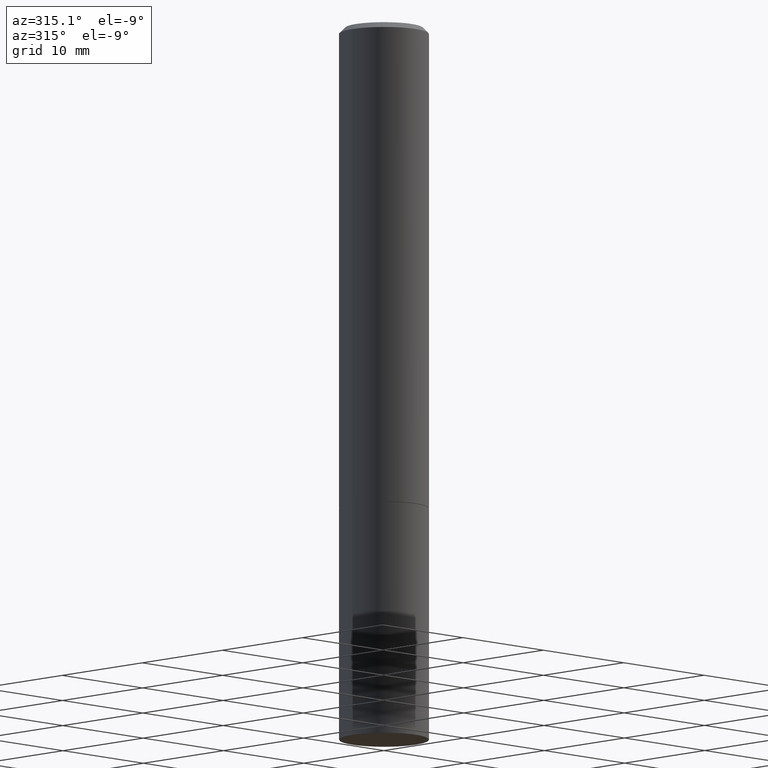
[diagram: clean part render]
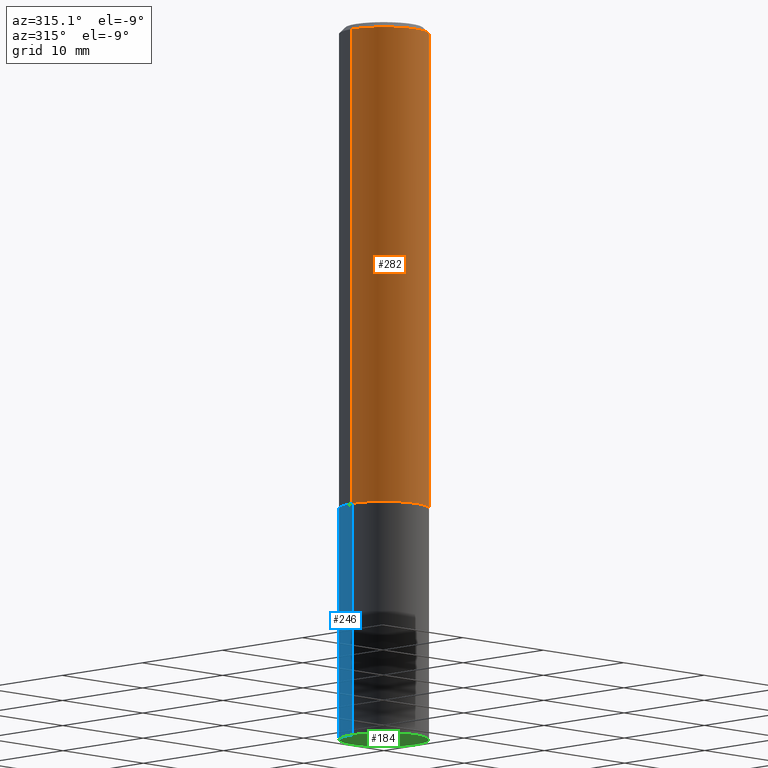
[diagram: same view with three faces highlighted in distinct colors, each labeled with its STEP entity id]
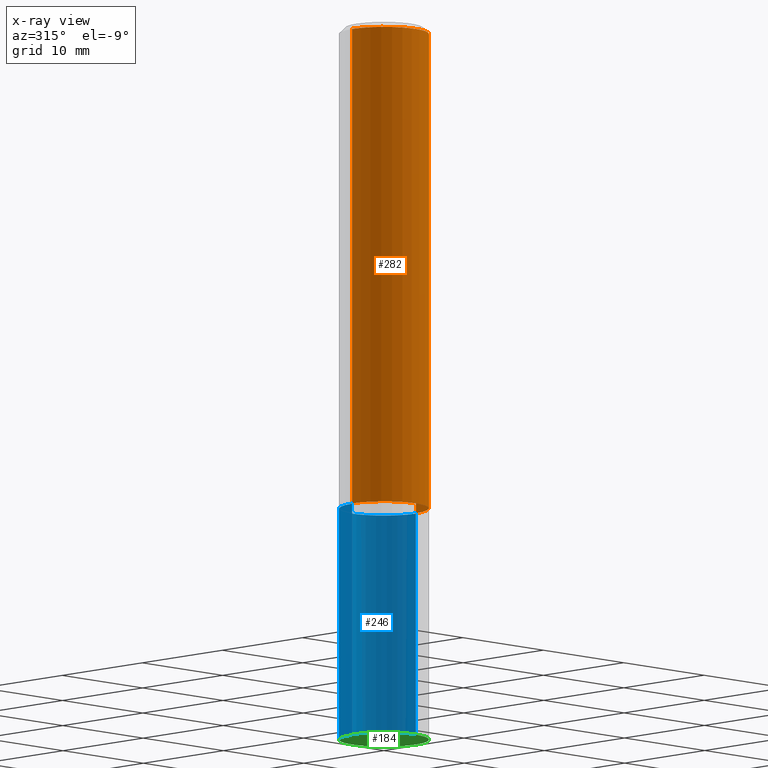
[diagram: x-ray of the same camera — body ghosted, the three highlighted faces saturated]
A machine part, auxiliary view with three faces highlighted in distinct colors.
The next image is the same camera in x-ray (body ghosted, the three faces saturated) — at least one of them is partly hidden behind the body in this view.
Their STEP definitions:

[orange] entity #282 — the highlighted cylindrical surface (partial cylindrical patch) has radius 3.9687 mm, axis along (-0, 0, 1).
#24 = DIRECTION ( 'NONE',  ( -2.445468806185136877E-29, 3.491481338843145188E-15, 1.000000000000000000 ) ) ;
#32 = CARTESIAN_POINT ( 'NONE',  ( 0.1562499999999999167, -1.091087918388478385E-15, 7.619026212181144772E-30 ) ) ;
#47 = AXIS2_PLACEMENT_3D ( 'NONE', #308, #55, #226 ) ;
#55 = DIRECTION ( 'NONE',  ( -2.445468806185136597E-29, 3.491481338843145583E-15, 1.000000000000000000 ) ) ;
#60 = DIRECTION ( 'NONE',  ( -2.445468806185136597E-29, 3.491481338843145583E-15, 1.000000000000000000 ) ) ;
#80 = LINE ( 'NONE', #363, #336 ) ;
#85 = CARTESIAN_POINT ( 'NONE',  ( 4.125505876034325766E-29, -5.890129018628387333E-15, -1.687000000000000055 ) ) ;
#91 = EDGE_CURVE ( 'NONE', #157, #187, #80, .T. ) ;
#95 = VERTEX_POINT ( 'NONE', #107 ) ;
#107 = CARTESIAN_POINT ( 'NONE',  ( 0.1562500000000000000, -6.981216937016866506E-15, -1.687000000000000055 ) ) ;
#110 = CARTESIAN_POINT ( 'NONE',  ( 4.890937612370281041E-31, -6.982962677686302702E-17, -0.02000000000000003511 ) ) ;
#114 = CIRCLE ( 'NONE', #239, 0.1562500000000000000 ) ;
#137 = AXIS2_PLACEMENT_3D ( 'NONE', #110, #60, #173 ) ;
#157 = VERTEX_POINT ( 'NONE', #222 ) ;
#158 = EDGE_CURVE ( 'NONE', #95, #267, #194, .T. ) ;
#168 = DIRECTION ( 'NONE',  ( -2.445468806185136597E-29, 3.491481338843145583E-15, 1.000000000000000000 ) ) ;
#172 = DIRECTION ( 'NONE',  ( -2.445468806185136877E-29, 3.491481338843145188E-15, 1.000000000000000000 ) ) ;
#173 = DIRECTION ( 'NONE',  ( 1.000000000000000000, -6.982962677686265133E-15, 0.000000000000000000 ) ) ;
#180 = EDGE_CURVE ( 'NONE', #187, #267, #202, .T. ) ;
#186 = CARTESIAN_POINT ( 'NONE',  ( 0.1562499999999998057, -1.141782438928663330E-15, -0.02000000000000003511 ) ) ;
#187 = VERTEX_POINT ( 'NONE', #284 ) ;
#192 = FACE_OUTER_BOUND ( 'NONE', #355, .T. ) ;
#194 = LINE ( 'NONE', #32, #315 ) ;
#202 = CIRCLE ( 'NONE', #137, 0.1562499999999998057 ) ;
#222 = CARTESIAN_POINT ( 'NONE',  ( -0.1562500000000000000, -1.869756298077466803E-15, -1.687000000000000055 ) ) ;
#226 = DIRECTION ( 'NONE',  ( 1.000000000000000000, -6.982962677686265133E-15, 4.876176775795935232E-29 ) ) ;
#239 = AXIS2_PLACEMENT_3D ( 'NONE', #85, #168, #244 ) ;
#240 = ORIENTED_EDGE ( 'NONE', *, *, #312, .T. ) ;
#244 = DIRECTION ( 'NONE',  ( 1.000000000000000000, -6.982962677686269077E-15, 0.000000000000000000 ) ) ;
#267 = VERTEX_POINT ( 'NONE', #186 ) ;
#282 = ADVANCED_FACE ( 'NONE', ( #192 ), #340, .T. ) ;
#284 = CARTESIAN_POINT ( 'NONE',  ( -0.1562499999999998057, 1.021258291611614692E-15, -0.02000000000000003511 ) ) ;
#295 = ORIENTED_EDGE ( 'NONE', *, *, #158, .T. ) ;
#308 = CARTESIAN_POINT ( 'NONE',  ( 0.000000000000000000, 0.000000000000000000, 0.000000000000000000 ) ) ;
#312 = EDGE_CURVE ( 'NONE', #157, #95, #114, .T. ) ;
#315 = VECTOR ( 'NONE', #172, 39.37007874015748143 ) ;
#323 = ORIENTED_EDGE ( 'NONE', *, *, #91, .F. ) ;
#336 = VECTOR ( 'NONE', #24, 39.37007874015748143 ) ;
#339 = ORIENTED_EDGE ( 'NONE', *, *, #180, .F. ) ;
#340 = CYLINDRICAL_SURFACE ( 'NONE', #47, 0.1562499999999999167 ) ;
#355 = EDGE_LOOP ( 'NONE', ( #323, #240, #295, #339 ) ) ;
#363 = CARTESIAN_POINT ( 'NONE',  ( -0.1562499999999999167, 1.110223024625155949E-15, -7.685836078523285555E-30 ) ) ;

[blue] entity #246 — the highlighted cylindrical surface (partial cylindrical patch) has radius 3.9688 mm, axis along (-0, 0, 1).
#11 = FACE_OUTER_BOUND ( 'NONE', #209, .T. ) ;
#16 = VECTOR ( 'NONE', #360, 39.37007874015748143 ) ;
#20 = CARTESIAN_POINT ( 'NONE',  ( 0.1562500000000000000, -9.819791265496344905E-15, -2.500000000000000000 ) ) ;
#28 = DIRECTION ( 'NONE',  ( 1.000000000000000000, -6.982962677686269077E-15, 0.000000000000000000 ) ) ;
#33 = EDGE_CURVE ( 'NONE', #296, #74, #51, .T. ) ;
#36 = AXIS2_PLACEMENT_3D ( 'NONE', #235, #257, #347 ) ;
#41 = VECTOR ( 'NONE', #357, 39.37007874015748143 ) ;
#50 = ORIENTED_EDGE ( 'NONE', *, *, #131, .F. ) ;
#51 = LINE ( 'NONE', #275, #41 ) ;
#58 = DIRECTION ( 'NONE',  ( 1.000000000000000000, -6.982962677686269077E-15, 0.000000000000000000 ) ) ;
#65 = CYLINDRICAL_SURFACE ( 'NONE', #36, 0.1562500000000000000 ) ;
#71 = CIRCLE ( 'NONE', #103, 0.1562500000000000000 ) ;
#74 = VERTEX_POINT ( 'NONE', #139 ) ;
#83 = CARTESIAN_POINT ( 'NONE',  ( -0.1562500000000000000, -6.200938898912389918E-15, -2.500000000000000000 ) ) ;
#86 = DIRECTION ( 'NONE',  ( -2.445468806185136597E-29, 3.491481338843145583E-15, 1.000000000000000000 ) ) ;
#103 = AXIS2_PLACEMENT_3D ( 'NONE', #225, #86, #58 ) ;
#108 = EDGE_CURVE ( 'NONE', #349, #160, #227, .T. ) ;
#112 = AXIS2_PLACEMENT_3D ( 'NONE', #217, #365, #28 ) ;
#131 = EDGE_CURVE ( 'NONE', #160, #74, #71, .T. ) ;
#139 = CARTESIAN_POINT ( 'NONE',  ( -0.1562500000000000000, -6.200938898912389918E-15, -1.688000000000000167 ) ) ;
#160 = VERTEX_POINT ( 'NONE', #200 ) ;
#200 = CARTESIAN_POINT ( 'NONE',  ( 0.1562500000000000000, -6.984708418355709513E-15, -1.688000000000000167 ) ) ;
#209 = EDGE_LOOP ( 'NONE', ( #327, #210, #50, #237 ) ) ;
#210 = ORIENTED_EDGE ( 'NONE', *, *, #33, .T. ) ;
#217 = CARTESIAN_POINT ( 'NONE',  ( 6.113672015462842613E-29, -8.728703347107864943E-15, -2.500000000000000000 ) ) ;
#225 = CARTESIAN_POINT ( 'NONE',  ( 4.127951344840510809E-29, -5.893620499967230340E-15, -1.688000000000000167 ) ) ;
#227 = LINE ( 'NONE', #303, #16 ) ;
#235 = CARTESIAN_POINT ( 'NONE',  ( 0.000000000000000000, 0.000000000000000000, 0.000000000000000000 ) ) ;
#237 = ORIENTED_EDGE ( 'NONE', *, *, #108, .F. ) ;
#246 = ADVANCED_FACE ( 'NONE', ( #11 ), #65, .T. ) ;
#257 = DIRECTION ( 'NONE',  ( -2.445468806185136597E-29, 3.491481338843145583E-15, 1.000000000000000000 ) ) ;
#268 = CIRCLE ( 'NONE', #112, 0.1562500000000000000 ) ;
#275 = CARTESIAN_POINT ( 'NONE',  ( -0.1562500000000000000, 1.110223024625156540E-15, -7.685836078523291160E-30 ) ) ;
#276 = EDGE_CURVE ( 'NONE', #349, #296, #268, .T. ) ;
#296 = VERTEX_POINT ( 'NONE', #83 ) ;
#303 = CARTESIAN_POINT ( 'NONE',  ( 0.1562500000000000000, -1.091087918388479174E-15, 7.619026212181150377E-30 ) ) ;
#327 = ORIENTED_EDGE ( 'NONE', *, *, #276, .T. ) ;
#347 = DIRECTION ( 'NONE',  ( 1.000000000000000000, -6.982962677686266711E-15, 4.876176775795936353E-29 ) ) ;
#349 = VERTEX_POINT ( 'NONE', #20 ) ;
#357 = DIRECTION ( 'NONE',  ( -2.445468806185136877E-29, 3.491481338843145188E-15, 1.000000000000000000 ) ) ;
#360 = DIRECTION ( 'NONE',  ( -2.445468806185136877E-29, 3.491481338843145188E-15, 1.000000000000000000 ) ) ;
#365 = DIRECTION ( 'NONE',  ( -2.445468806185136597E-29, 3.491481338843145583E-15, 1.000000000000000000 ) ) ;

[green] entity #184 — the highlighted planar face has unit normal (0, -0, -1).
#3 = CARTESIAN_POINT ( 'NONE',  ( 6.113672015462842613E-29, -8.728703347107864943E-15, -2.500000000000000000 ) ) ;
#19 = ORIENTED_EDGE ( 'NONE', *, *, #276, .F. ) ;
#20 = CARTESIAN_POINT ( 'NONE',  ( 0.1562500000000000000, -9.819791265496344905E-15, -2.500000000000000000 ) ) ;
#23 = AXIS2_PLACEMENT_3D ( 'NONE', #3, #260, #318 ) ;
#28 = DIRECTION ( 'NONE',  ( 1.000000000000000000, -6.982962677686269077E-15, 0.000000000000000000 ) ) ;
#56 = PLANE ( 'NONE',  #177 ) ;
#78 = ORIENTED_EDGE ( 'NONE', *, *, #195, .F. ) ;
#83 = CARTESIAN_POINT ( 'NONE',  ( -0.1562500000000000000, -6.200938898912389918E-15, -2.500000000000000000 ) ) ;
#112 = AXIS2_PLACEMENT_3D ( 'NONE', #217, #365, #28 ) ;
#113 = DIRECTION ( 'NONE',  ( 2.438088387897960049E-29, -3.491481338843145188E-15, -1.000000000000000000 ) ) ;
#177 = AXIS2_PLACEMENT_3D ( 'NONE', #366, #113, #280 ) ;
#183 = CIRCLE ( 'NONE', #23, 0.1562500000000000000 ) ;
#184 = ADVANCED_FACE ( 'NONE', ( #196 ), #56, .T. ) ;
#195 = EDGE_CURVE ( 'NONE', #296, #349, #183, .T. ) ;
#196 = FACE_OUTER_BOUND ( 'NONE', #208, .T. ) ;
#208 = EDGE_LOOP ( 'NONE', ( #19, #78 ) ) ;
#217 = CARTESIAN_POINT ( 'NONE',  ( 6.113672015462842613E-29, -8.728703347107864943E-15, -2.500000000000000000 ) ) ;
#260 = DIRECTION ( 'NONE',  ( -2.445468806185136597E-29, 3.491481338843145583E-15, 1.000000000000000000 ) ) ;
#268 = CIRCLE ( 'NONE', #112, 0.1562500000000000000 ) ;
#276 = EDGE_CURVE ( 'NONE', #349, #296, #268, .T. ) ;
#280 = DIRECTION ( 'NONE',  ( -1.000000000000000000, 6.982962677686265922E-15, -4.876176775795935793E-29 ) ) ;
#296 = VERTEX_POINT ( 'NONE', #83 ) ;
#318 = DIRECTION ( 'NONE',  ( 1.000000000000000000, -6.982962677686269077E-15, 0.000000000000000000 ) ) ;
#349 = VERTEX_POINT ( 'NONE', #20 ) ;
#365 = DIRECTION ( 'NONE',  ( -2.445468806185136597E-29, 3.491481338843145583E-15, 1.000000000000000000 ) ) ;
#366 = CARTESIAN_POINT ( 'NONE',  ( 1.091087918388540310E-15, 0.1562499999999912570, -2.500000000000000444 ) ) ;